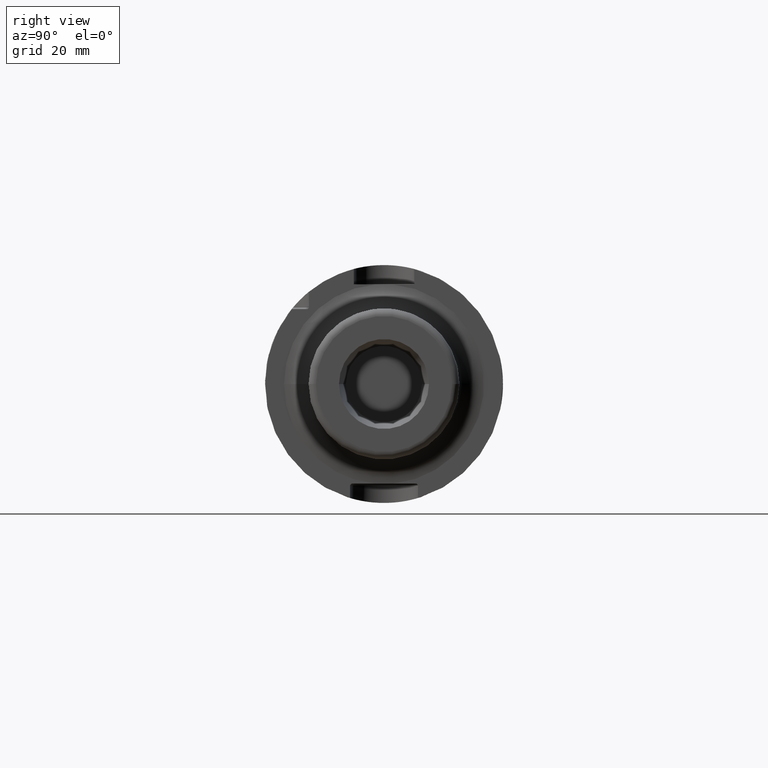
[diagram: clean part render]
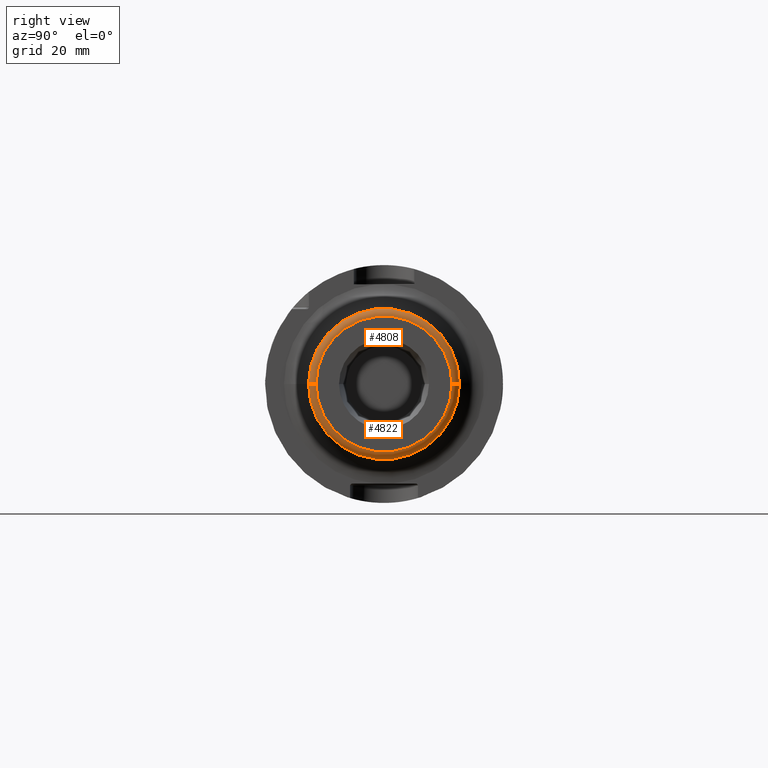
[diagram: same view with one multi-face feature highlighted, each face labeled with its STEP entity id]
A machine part, right view. The highlighted faces form ONE feature: a constant-radius fillet chain: 2 tangent blend faces with common blend radius 2 mm. The faces share edges in the B-rep.
Their STEP definitions:
[1] entity #4808 (Torus):
#1586=CARTESIAN_POINT('',(1.38E2,0.E0,0.E0));
#1587=DIRECTION('',(-1.E0,0.E0,0.E0));
#1588=DIRECTION('',(0.E0,-1.E0,0.E0));
#1589=AXIS2_PLACEMENT_3D('',#1586,#1587,#1588);
#1601=CARTESIAN_POINT('',(1.38E2,-1.8E1,-3.283623373207E-12));
#1602=DIRECTION('',(0.E0,-1.824239544146E-13,1.E0));
#1603=DIRECTION('',(0.E0,-1.E0,-1.824239544146E-13));
#1604=AXIS2_PLACEMENT_3D('',#1601,#1602,#1603);
#1606=CARTESIAN_POINT('',(1.38E2,1.8E1,3.287564664944E-12));
#1607=DIRECTION('',(0.E0,1.826429632534E-13,-1.E0));
#1608=DIRECTION('',(0.E0,1.E0,1.826429632534E-13));
#1609=AXIS2_PLACEMENT_3D('',#1606,#1607,#1608);
#1629=CARTESIAN_POINT('',(1.4E2,0.E0,0.E0));
#1630=DIRECTION('',(-1.E0,0.E0,0.E0));
#1631=DIRECTION('',(0.E0,-1.E0,0.E0));
#1632=AXIS2_PLACEMENT_3D('',#1629,#1630,#1631);
#3095=CARTESIAN_POINT('',(1.38E2,2.E1,0.E0));
#3096=CARTESIAN_POINT('',(1.38E2,-2.E1,0.E0));
#3097=VERTEX_POINT('',#3095);
#3098=VERTEX_POINT('',#3096);
#3099=CARTESIAN_POINT('',(1.4E2,1.8E1,0.E0));
#3100=CARTESIAN_POINT('',(1.4E2,-1.8E1,0.E0));
#3101=VERTEX_POINT('',#3099);
#3102=VERTEX_POINT('',#3100);
#4794=CARTESIAN_POINT('',(1.38E2,0.E0,0.E0));
#4795=DIRECTION('',(1.E0,0.E0,0.E0));
#4796=DIRECTION('',(0.E0,-9.999931686909E-1,-3.696291583140E-3));
#4797=AXIS2_PLACEMENT_3D('',#4794,#4795,#4796);
#4798=TOROIDAL_SURFACE('',#4797,1.8E1,2.E0);
#4799=ORIENTED_EDGE('',*,*,#4783,.T.);
#4801=ORIENTED_EDGE('',*,*,#4800,.T.);
#4803=ORIENTED_EDGE('',*,*,#4802,.F.);
#4805=ORIENTED_EDGE('',*,*,#4804,.F.);
#4806=EDGE_LOOP('',(#4799,#4801,#4803,#4805));
#4807=FACE_OUTER_BOUND('',#4806,.F.);
#4808=ADVANCED_FACE('',(#4807),#4798,.T.);
#1590=CIRCLE('',#1589,2.E1);
#1605=CIRCLE('',#1604,2.E0);
#1610=CIRCLE('',#1609,2.E0);
#1633=CIRCLE('',#1632,1.8E1);
#4783=EDGE_CURVE('',#3098,#3097,#1590,.T.);
#4800=EDGE_CURVE('',#3097,#3101,#1610,.T.);
#4802=EDGE_CURVE('',#3102,#3101,#1633,.T.);
#4804=EDGE_CURVE('',#3098,#3102,#1605,.T.);
[2] entity #4822 (Torus):
#1601=CARTESIAN_POINT('',(1.38E2,-1.8E1,-3.283623373207E-12));
#1602=DIRECTION('',(0.E0,-1.824239544146E-13,1.E0));
#1603=DIRECTION('',(0.E0,-1.E0,-1.824239544146E-13));
#1604=AXIS2_PLACEMENT_3D('',#1601,#1602,#1603);
#1606=CARTESIAN_POINT('',(1.38E2,1.8E1,3.287564664944E-12));
#1607=DIRECTION('',(0.E0,1.826429632534E-13,-1.E0));
#1608=DIRECTION('',(0.E0,1.E0,1.826429632534E-13));
#1609=AXIS2_PLACEMENT_3D('',#1606,#1607,#1608);
#1611=CARTESIAN_POINT('',(1.38E2,0.E0,0.E0));
#1612=DIRECTION('',(-1.E0,0.E0,0.E0));
#1613=DIRECTION('',(0.E0,1.E0,0.E0));
#1614=AXIS2_PLACEMENT_3D('',#1611,#1612,#1613);
#1624=CARTESIAN_POINT('',(1.4E2,0.E0,0.E0));
#1625=DIRECTION('',(-1.E0,0.E0,0.E0));
#1626=DIRECTION('',(0.E0,1.E0,0.E0));
#1627=AXIS2_PLACEMENT_3D('',#1624,#1625,#1626);
#3095=CARTESIAN_POINT('',(1.38E2,2.E1,0.E0));
#3096=CARTESIAN_POINT('',(1.38E2,-2.E1,0.E0));
#3097=VERTEX_POINT('',#3095);
#3098=VERTEX_POINT('',#3096);
#3099=CARTESIAN_POINT('',(1.4E2,1.8E1,0.E0));
#3100=CARTESIAN_POINT('',(1.4E2,-1.8E1,0.E0));
#3101=VERTEX_POINT('',#3099);
#3102=VERTEX_POINT('',#3100);
#4809=CARTESIAN_POINT('',(1.38E2,0.E0,0.E0));
#4810=DIRECTION('',(1.E0,0.E0,0.E0));
#4811=DIRECTION('',(0.E0,9.999931686909E-1,3.696291583140E-3));
#4812=AXIS2_PLACEMENT_3D('',#4809,#4810,#4811);
#4813=TOROIDAL_SURFACE('',#4812,1.8E1,2.E0);
#4815=ORIENTED_EDGE('',*,*,#4814,.T.);
#4816=ORIENTED_EDGE('',*,*,#4804,.T.);
#4818=ORIENTED_EDGE('',*,*,#4817,.F.);
#4819=ORIENTED_EDGE('',*,*,#4800,.F.);
#4820=EDGE_LOOP('',(#4815,#4816,#4818,#4819));
#4821=FACE_OUTER_BOUND('',#4820,.F.);
#4822=ADVANCED_FACE('',(#4821),#4813,.T.);
#1605=CIRCLE('',#1604,2.E0);
#1610=CIRCLE('',#1609,2.E0);
#1615=CIRCLE('',#1614,2.E1);
#1628=CIRCLE('',#1627,1.8E1);
#4800=EDGE_CURVE('',#3097,#3101,#1610,.T.);
#4804=EDGE_CURVE('',#3098,#3102,#1605,.T.);
#4814=EDGE_CURVE('',#3097,#3098,#1615,.T.);
#4817=EDGE_CURVE('',#3101,#3102,#1628,.T.);